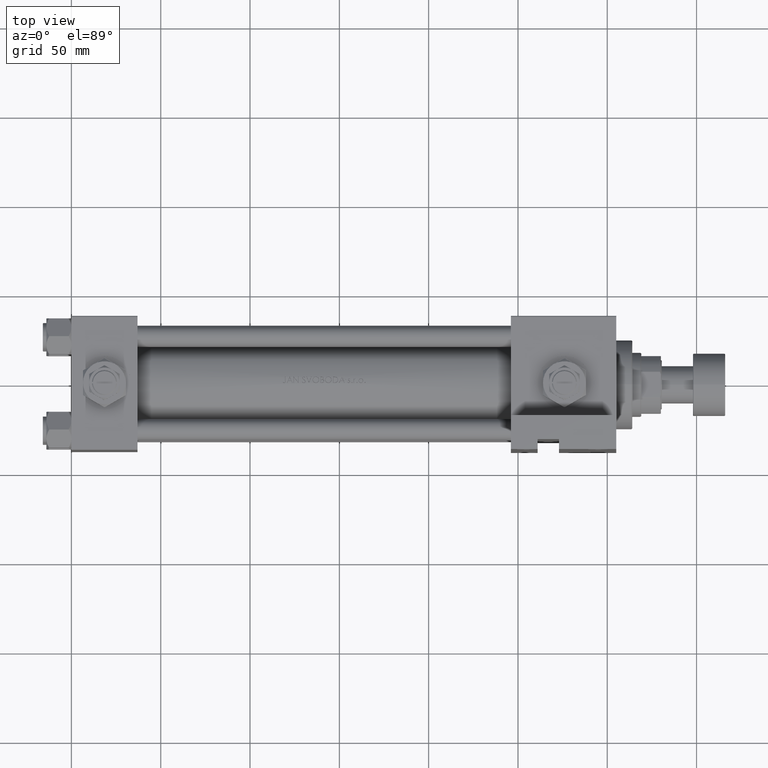
[diagram: clean part render]
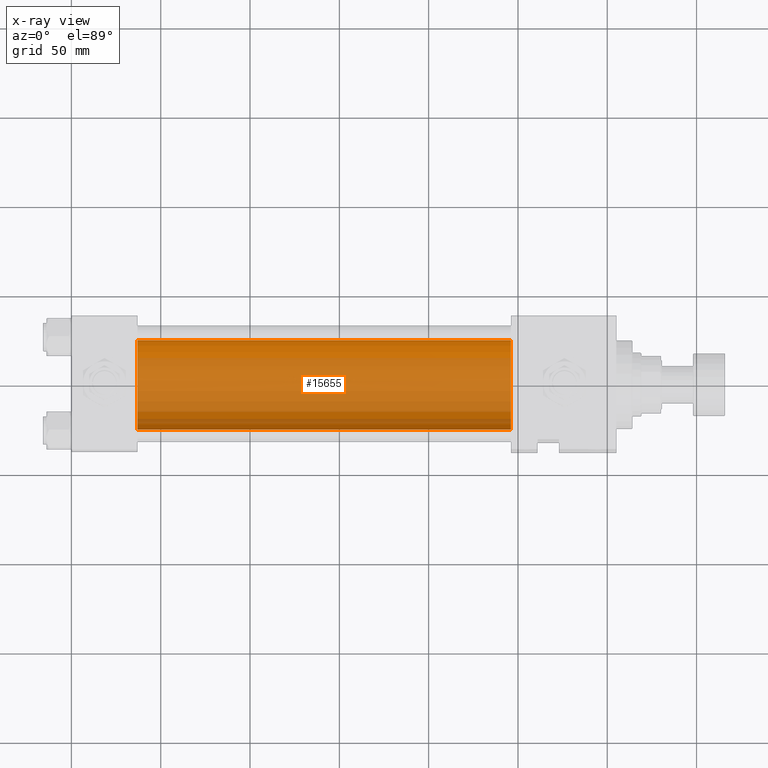
[diagram: x-ray — body ghosted, one internal face saturated and labeled with its STEP entity id]
A machine part, top view, then the same camera in x-ray: the body is ghosted and one INTERNAL B-rep face — a face not visible from any outside direction — is saturated and labeled: STEP entity #15655.
In plain terms, the highlighted cylindrical surface (partial cylindrical patch) has radius 25 mm, axis along (-1, -0, 0).
Its self-contained STEP definition (entity closure, byte-faithful):
#498 = DIRECTION ( 'NONE',  ( 1.000000000000000000, 0.000000000000000000, 0.000000000000000000 ) ) ;
#4725 = CIRCLE ( 'NONE', #27428, 25.00000000000000000 ) ;
#10248 = CARTESIAN_POINT ( 'NONE',  ( 246.0000000000000000, 3.122849337825750617E-15, -25.50000000000000355 ) ) ;
#10877 = DIRECTION ( 'NONE',  ( -1.000000000000000000, -0.000000000000000000, -0.000000000000000000 ) ) ;
#11774 = CARTESIAN_POINT ( 'NONE',  ( 37.00000000000000000, 6.123233995736772199E-17, -0.5000000000000004441 ) ) ;
#12281 = DIRECTION ( 'NONE',  ( 1.000000000000000000, 0.000000000000000000, 0.000000000000000000 ) ) ;
#12708 = FACE_OUTER_BOUND ( 'NONE', #20317, .T. ) ;
#14676 = CARTESIAN_POINT ( 'NONE',  ( 246.0000000000000000, 6.123233995736772199E-17, 24.50000000000000000 ) ) ;
#14775 = CARTESIAN_POINT ( 'NONE',  ( 246.0000000000000000, 3.122849337825750617E-15, -25.50000000000000355 ) ) ;
#14971 = EDGE_CURVE ( 'NONE', #17109, #46960, #30149, .T. ) ;
#15160 = CIRCLE ( 'NONE', #43524, 25.00000000000000000 ) ;
#15329 = DIRECTION ( 'NONE',  ( 0.000000000000000000, 0.000000000000000000, -1.000000000000000000 ) ) ;
#15655 = ADVANCED_FACE ( 'NONE', ( #12708 ), #28156, .F. ) ;
#17109 = VERTEX_POINT ( 'NONE', #14676 ) ;
#17577 = CARTESIAN_POINT ( 'NONE',  ( 37.00000000000000000, 6.123233995736772199E-17, 24.50000000000000000 ) ) ;
#18361 = DIRECTION ( 'NONE',  ( -1.000000000000000000, -0.000000000000000000, -0.000000000000000000 ) ) ;
#20160 = CARTESIAN_POINT ( 'NONE',  ( 37.00000000000000000, 3.122849337825750617E-15, -25.50000000000000355 ) ) ;
#20291 = DIRECTION ( 'NONE',  ( 0.000000000000000000, 0.000000000000000000, -1.000000000000000000 ) ) ;
#20317 = EDGE_LOOP ( 'NONE', ( #34388, #32640, #28732, #20423 ) ) ;
#20423 = ORIENTED_EDGE ( 'NONE', *, *, #24732, .F. ) ;
#20554 = DIRECTION ( 'NONE',  ( -1.000000000000000000, -0.000000000000000000, -0.000000000000000000 ) ) ;
#21375 = EDGE_CURVE ( 'NONE', #26736, #17109, #15160, .T. ) ;
#24626 = EDGE_CURVE ( 'NONE', #26736, #34138, #44989, .T. ) ;
#24732 = EDGE_CURVE ( 'NONE', #34138, #46960, #4725, .T. ) ;
#26298 = AXIS2_PLACEMENT_3D ( 'NONE', #39822, #20554, #30158 ) ;
#26736 = VERTEX_POINT ( 'NONE', #14775 ) ;
#27428 = AXIS2_PLACEMENT_3D ( 'NONE', #11774, #12281, #15329 ) ;
#28156 = CYLINDRICAL_SURFACE ( 'NONE', #26298, 25.00000000000000000 ) ;
#28732 = ORIENTED_EDGE ( 'NONE', *, *, #14971, .T. ) ;
#30149 = LINE ( 'NONE', #34210, #41640 ) ;
#30158 = DIRECTION ( 'NONE',  ( 0.000000000000000000, 0.000000000000000000, 1.000000000000000000 ) ) ;
#32640 = ORIENTED_EDGE ( 'NONE', *, *, #21375, .T. ) ;
#34138 = VERTEX_POINT ( 'NONE', #20160 ) ;
#34210 = CARTESIAN_POINT ( 'NONE',  ( 246.0000000000000000, 6.123233995736772199E-17, 24.50000000000000000 ) ) ;
#34388 = ORIENTED_EDGE ( 'NONE', *, *, #24626, .F. ) ;
#35275 = CARTESIAN_POINT ( 'NONE',  ( 246.0000000000000000, 6.123233995736772199E-17, -0.5000000000000004441 ) ) ;
#36324 = VECTOR ( 'NONE', #18361, 1000.000000000000000 ) ;
#39822 = CARTESIAN_POINT ( 'NONE',  ( 246.0000000000000000, 6.123233995736772199E-17, -0.5000000000000004441 ) ) ;
#41640 = VECTOR ( 'NONE', #10877, 1000.000000000000000 ) ;
#43524 = AXIS2_PLACEMENT_3D ( 'NONE', #35275, #498, #20291 ) ;
#44989 = LINE ( 'NONE', #10248, #36324 ) ;
#46960 = VERTEX_POINT ( 'NONE', #17577 ) ;